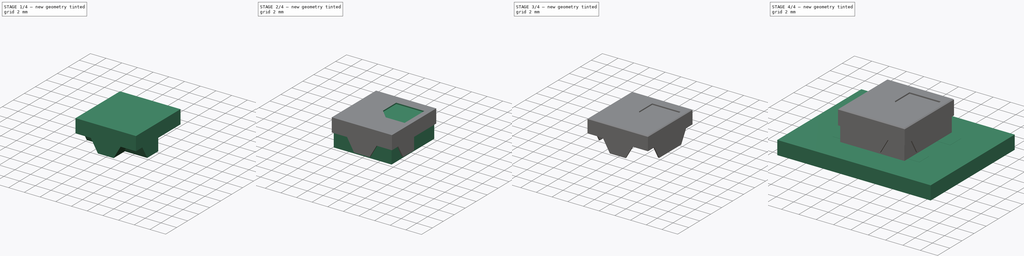
[diagram: build sequence overview — one tinted view per stage of 4, left to right]
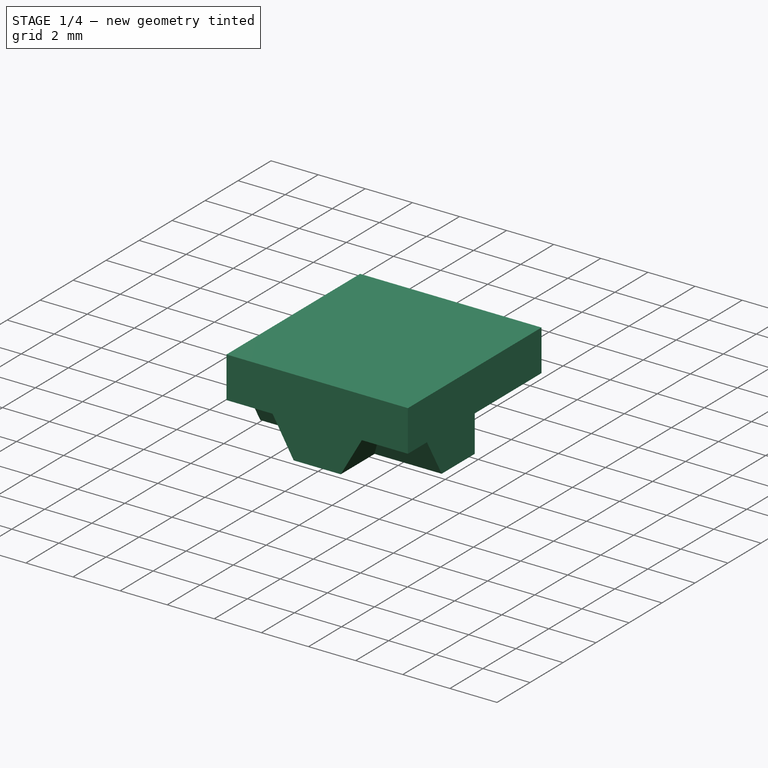
[diagram: stage 1 of 4 — iso view after this stage's code; geometry added in this stage tinted green]
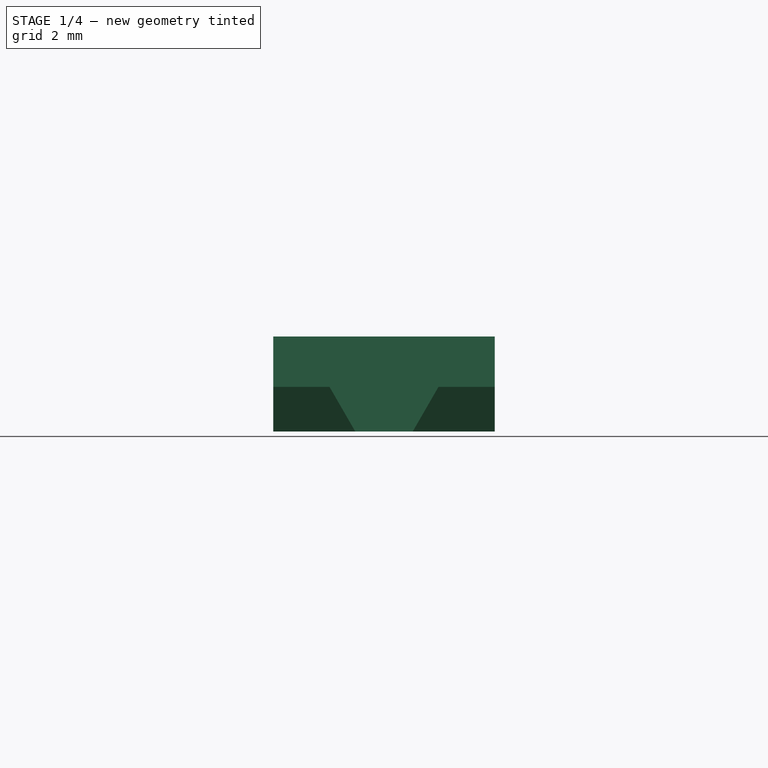
[diagram: stage 1 of 4 — front view after this stage's code; geometry added in this stage tinted green]
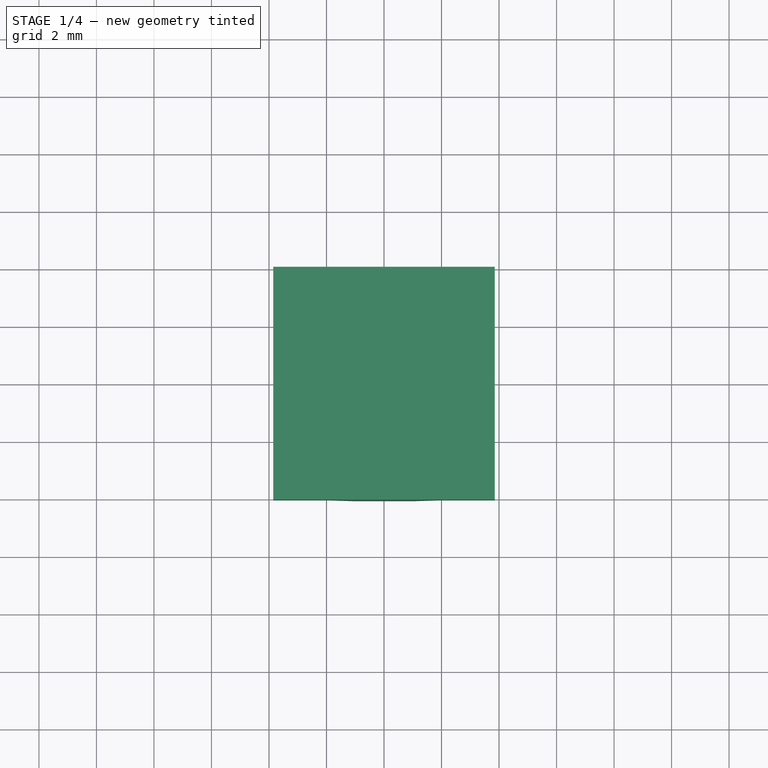
[diagram: stage 1 of 4 — top view after this stage's code; geometry added in this stage tinted green]
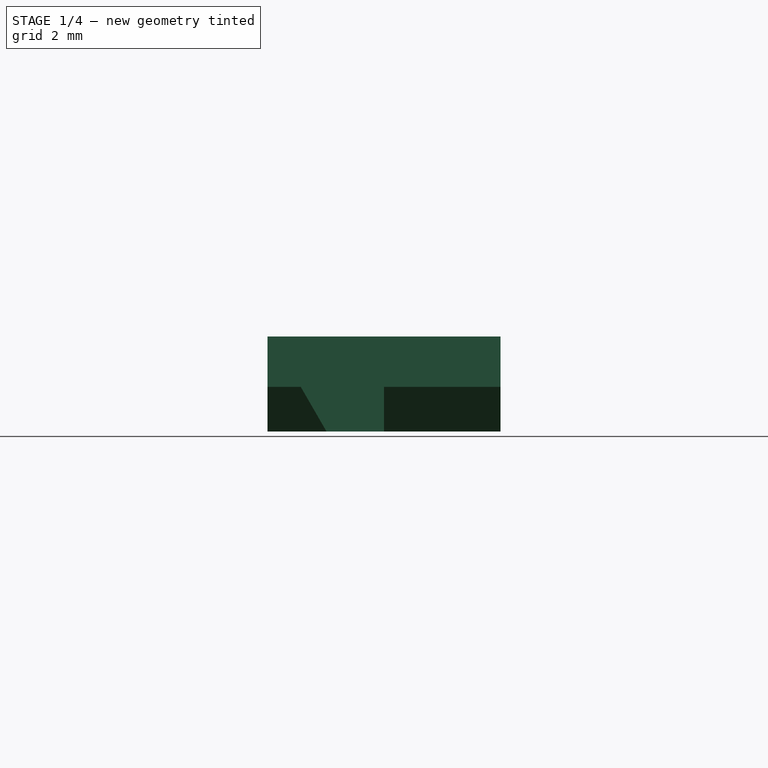
[diagram: stage 1 of 4 — right view after this stage's code; geometry added in this stage tinted green]
FCSTD DOCUMENT  (FreeCAD 0.19R24276 (Git))
Label: Vishay_TFMM5xx0
License: All rights reserved
LicenseURL: http://en.wikipedia.org/wiki/All_rights_reserved
objects: Sketcher::SketchObject×6, Part::FeaturePython×5, PartDesign::Pad×4, Part::Box×2, App::DocumentObjectGroup×1, PartDesign::Pocket×1, PartDesign::Body×1, Part::Cut×1, Part::Extrusion×1, Part::Chamfer×1, Part::Feature×1
note: 28 computed .brp shape members not serialized (recipe doc carries the construction recipe); baked Part::Feature solids carry a one-line shape summary decoded from their .brp

FEATURE [Sketcher::SketchObject] MirroredSketch
  FullyConstrained = false
  Placement = pos=(0,0,0) rot=(0.57735,0.57735,0.57735;2.0944rad)
  sketch-geometry (6):
    g0: LineSegment StartX=-2 StartY=0.2 StartZ=0 EndX=-2.89489 EndY=1.75 EndZ=0
    g1: LineSegment StartX=-2.89489 StartY=1.75 StartZ=0 EndX=-4.05 EndY=1.75 EndZ=0
    g2: LineSegment StartX=-4.05 StartY=1.75 StartZ=0 EndX=-4.05 EndY=3.5 EndZ=0
    g3: LineSegment StartX=-4.05 StartY=3.5 StartZ=0 EndX=0 EndY=3.5 EndZ=0
    g4: LineSegment StartX=-2 StartY=0.2 StartZ=0 EndX=0 EndY=0.2 EndZ=0
    g5: LineSegment StartX=0 StartY=3.5 StartZ=0 EndX=0 EndY=0.2 EndZ=0
  constraints (11):
    c: Coincident(g1,g0)
    c: Horizontal(g1)
    c: Coincident(g2,g1)
    c: Vertical(g2)
    c: Coincident(g3,g2)
    c: Horizontal(g3)
    c: Coincident(g4,g0)
    c: Horizontal(g4)
    c: Coincident(g5,g3)
    c: Coincident(g5,g4)
    c: Angle(g0,g4) = -2.0944
FEATURE [Sketcher::SketchObject] MirroredSketch001
  FullyConstrained = false
  Placement = pos=(0,0,0) rot=(1,0,0;1.5708rad)
  sketch-geometry (6):
    g0: LineSegment StartX=0 StartY=0.2 StartZ=0 EndX=7e-16 EndY=3.5 EndZ=0
    g1: LineSegment StartX=7e-16 StartY=3.5 StartZ=0 EndX=-3.85 EndY=3.5 EndZ=0
    g2: LineSegment StartX=-3.85 StartY=3.5 StartZ=0 EndX=-3.85 EndY=1.75 EndZ=0
    g3: LineSegment StartX=-3.85 StartY=1.75 StartZ=0 EndX=-1.89489 EndY=1.75 EndZ=0
    g4: LineSegment StartX=-1.89489 StartY=1.75 StartZ=0 EndX=-1 EndY=0.2 EndZ=0
    g5: LineSegment StartX=-1 StartY=0.2 StartZ=0 EndX=0 EndY=0.2 EndZ=0
  constraints (11):
    c: Coincident(g1,g0)
    c: Horizontal(g1)
    c: Coincident(g2,g1)
    c: Vertical(g2)
    c: Coincident(g3,g2)
    c: Horizontal(g3)
    c: Coincident(g4,g3)
    c: Coincident(g5,g4)
    c: Coincident(g5,g0)
    c: Horizontal(g5)
    c: Angle(g4,g5) = -2.0944
FEATURE [PartDesign::Pad] Pad
  Direction = (1,1,1)
  Length = 8.1
  Length2 = 100
  Midplane = true
  Placement = pos=(0,0,0) rot=(1,0,0;1.5708rad)
  Profile = -> MirroredSketch001
  Type = 0
FEATURE [PartDesign::Pad] Pad001
  BaseFeature = -> Pad
  Direction = (1,1,1)
  Length = 7.7
  Length2 = 100
  Midplane = true
  Placement = pos=(0,0,0) rot=(1,0,0;1.5708rad)
  Profile = -> MirroredSketch
  Type = 0
FEATURE [PartDesign::Pad] Pad002
  BaseFeature = -> Pad001
  Direction = (1,1,1)
  Length = 8.1
  Length2 = 100
  Midplane = true
  Placement = pos=(0,0,0) rot=(1,0,0;1.5708rad)
  Profile = -> Sketch001
  Type = 0
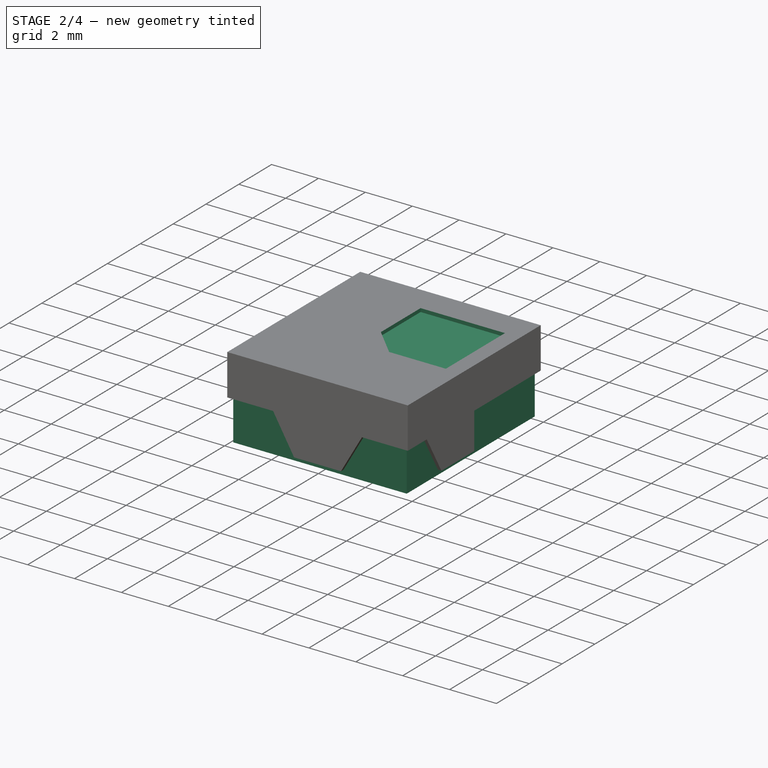
[diagram: stage 2 of 4 — iso view after this stage's code; geometry added in this stage tinted green]
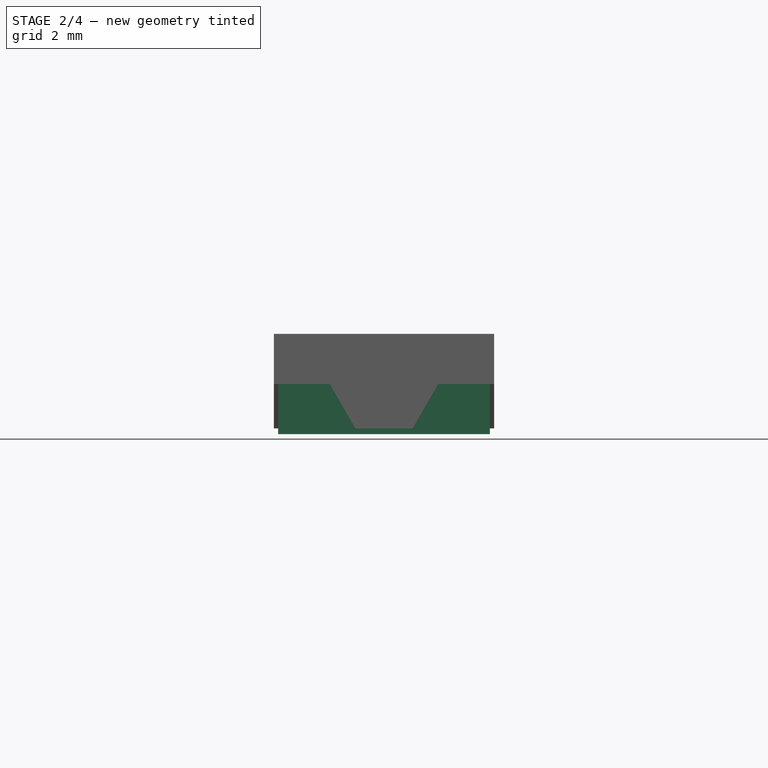
[diagram: stage 2 of 4 — front view after this stage's code; geometry added in this stage tinted green]
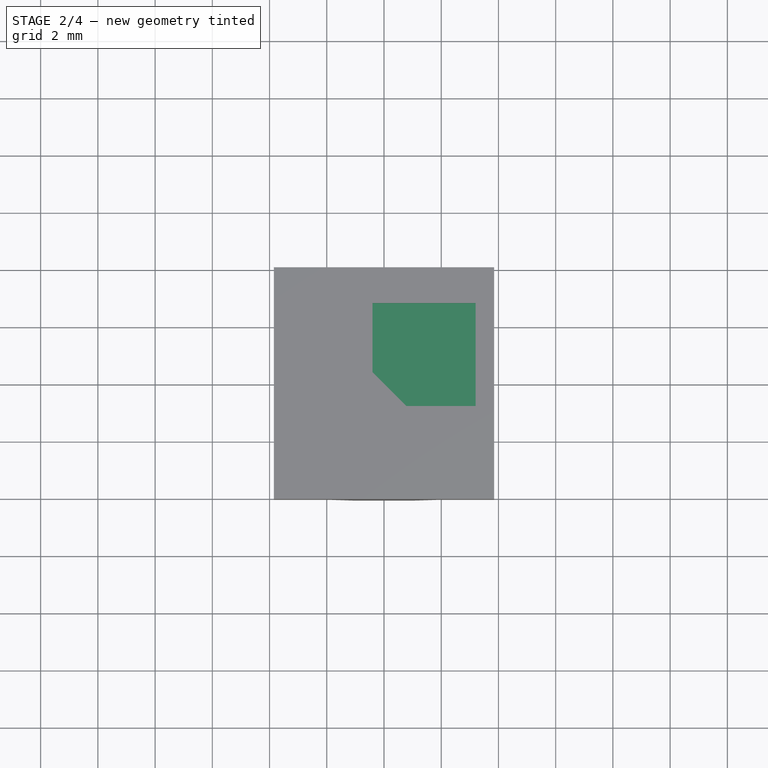
[diagram: stage 2 of 4 — top view after this stage's code; geometry added in this stage tinted green]
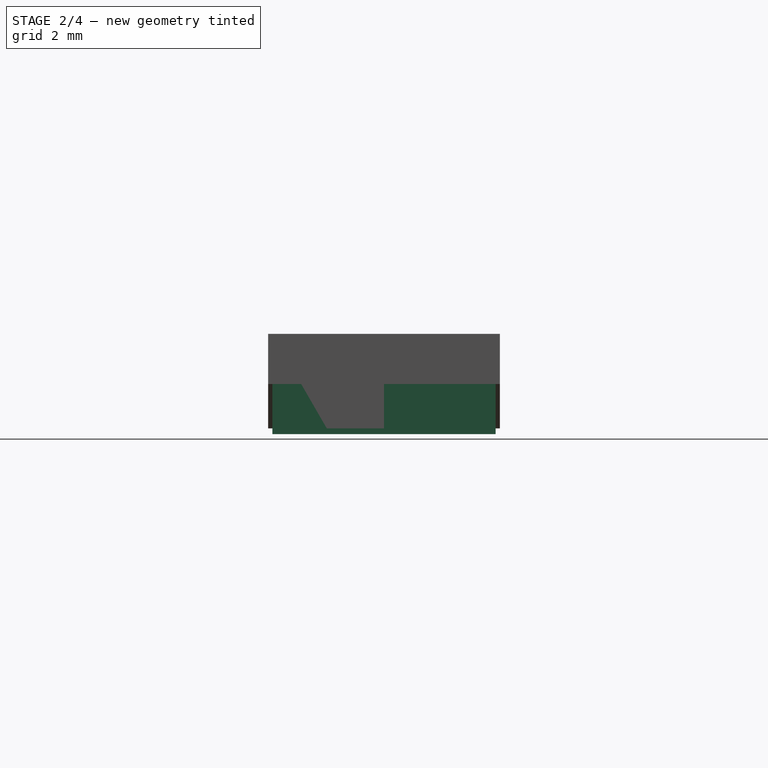
[diagram: stage 2 of 4 — right view after this stage's code; geometry added in this stage tinted green]
FEATURE [Sketcher::SketchObject] Sketch
  FullyConstrained = true
  MapMode = 5
  Placement = pos=(0,0,0) rot=(0.57735,0.57735,0.57735;2.0944rad)
  Support = -> [YZ_Plane]
  sketch-geometry (6):
    g0: LineSegment StartX=2 StartY=0.2 StartZ=0 EndX=2.89489 EndY=1.75 EndZ=0
    g1: LineSegment StartX=2.89489 StartY=1.75 StartZ=0 EndX=4.05 EndY=1.75 EndZ=0
    g2: LineSegment StartX=4.05 StartY=1.75 StartZ=0 EndX=4.05 EndY=3.5 EndZ=0
    g3: LineSegment StartX=4.05 StartY=3.5 StartZ=0 EndX=0 EndY=3.5 EndZ=0
    g4: LineSegment StartX=2 StartY=0.2 StartZ=0 EndX=0 EndY=0.2 EndZ=0
    g5: LineSegment StartX=0 StartY=3.5 StartZ=0 EndX=0 EndY=0.2 EndZ=0
  constraints (18):
    c: Coincident(g1,g0)
    c: Horizontal(g1)
    c: Coincident(g2,g1)
    c: Vertical(g2)
    c: Coincident(g3,g2)
    c: PointOnObject(g3,g-2)
    c: Horizontal(g3)
    c: Coincident(g4,g0)
    c: PointOnObject(g4,g-2)
    c: Horizontal(g4)
    c: Coincident(g5,g3)
    c: Coincident(g5,g4)
    c: DistanceY(g-1,g4) = 0.2
    c: DistanceY(g-1,g3) = 3.5
    c: Angle(g0,g4) = 2.0944
    c: DistanceX(g3,g3) = 4.05
    c: DistanceY(g-1,g1) = 1.75
    c: DistanceX(g4,g4) = 2
FEATURE [Sketcher::SketchObject] Sketch001
  ExternalGeometry = -> [Sketch]
  FullyConstrained = true
  MapMode = 5
  Placement = pos=(0,0,0) rot=(1,0,0;1.5708rad)
  Support = -> [XZ_Plane]
  sketch-geometry (6):
    g0: LineSegment StartX=0 StartY=0.2 StartZ=0 EndX=-7e-16 EndY=3.5 EndZ=0
    g1: LineSegment StartX=-7e-16 StartY=3.5 StartZ=0 EndX=3.85 EndY=3.5 EndZ=0
    g2: LineSegment StartX=3.85 StartY=3.5 StartZ=0 EndX=3.85 EndY=1.75 EndZ=0
    g3: LineSegment StartX=3.85 StartY=1.75 StartZ=0 EndX=1.89489 EndY=1.75 EndZ=0
    g4: LineSegment StartX=1.89489 StartY=1.75 StartZ=0 EndX=1 EndY=0.2 EndZ=0
    g5: LineSegment StartX=1 StartY=0.2 StartZ=0 EndX=0 EndY=0.2 EndZ=0
  constraints (16):
    c: Coincident(g0,g-3)
    c: Coincident(g0,g-3)
    c: Coincident(g1,g0)
    c: Horizontal(g1)
    c: Coincident(g2,g1)
    c: Vertical(g2)
    c: Coincident(g3,g2)
    c: Horizontal(g3)
    c: Coincident(g4,g3)
    c: Coincident(g5,g4)
    c: Coincident(g5,g0)
    c: Horizontal(g5)
    c: Angle(g4,g5) = 2.0944
    c: DistanceX(g1,g1) = 3.85
    c: DistanceX(g5,g5) = 1
    c: DistanceY(g0,g2) = 1.55
FEATURE [Part::Box] Box  label="Cube"
  AttacherType = Attacher::AttachEngine3D
  Height = 3.35
  Length = 7.4
  Placement = pos=(-3.7,-3.9,0) rot=(0,0,1;0rad)
  Width = 7.8
FEATURE [PartDesign::Pad] Pad003
  BaseFeature = -> Pad002
  Direction = (1,1,1)
  Length = 7.7
  Length2 = 100
  Midplane = true
  Placement = pos=(0,0,0) rot=(1,0,0;1.5708rad)
  Profile = -> Sketch
  Type = 0
FEATURE [Sketcher::SketchObject] Sketch002
  FullyConstrained = true
  MapMode = 45
  Placement = pos=(7e-16,5.9e-15,3.5) rot=(0,0,1;0rad)
  Support = -> [Pad003]
  sketch-geometry (5):
    g0: LineSegment StartX=-0.4 StartY=2.8 StartZ=0 EndX=3.2 EndY=2.8 EndZ=0
    g1: LineSegment StartX=3.2 StartY=2.8 StartZ=0 EndX=3.2 EndY=-0.8 EndZ=0
    g2: LineSegment StartX=3.2 StartY=-0.8 StartZ=0 EndX=0.78 EndY=-0.8 EndZ=0
    g3: LineSegment StartX=0.78 StartY=-0.8 StartZ=0 EndX=-0.4 EndY=0.38 EndZ=0
    g4: LineSegment StartX=-0.4 StartY=0.38 StartZ=0 EndX=-0.4 EndY=2.8 EndZ=0
  constraints (15):
    c: Horizontal(g0)
    c: Coincident(g1,g0)
    c: Vertical(g1)
    c: Coincident(g2,g1)
    c: Horizontal(g2)
    c: Coincident(g3,g2)
    c: Coincident(g4,g0)
    c: Vertical(g4)
    c: Angle(g2,g3) = 2.35619
    c: Coincident(g3,g4)
    c: DistanceY(g1,g-1) = 0.8
    c: DistanceX(g3,g-1) = 0.4
    c: DistanceY(g1,g1) = 3.6
    c: DistanceX(g0,g0) = 3.6
    c: DistanceY(g4,g4) = 2.42
FEATURE [PartDesign::Pocket] Pocket
  BaseFeature = -> Pad003
  Length = 0.15
  Length2 = 100
  Placement = pos=(0,0,0) rot=(1,0,0;1.5708rad)
  Profile = -> Sketch002
  Type = 0
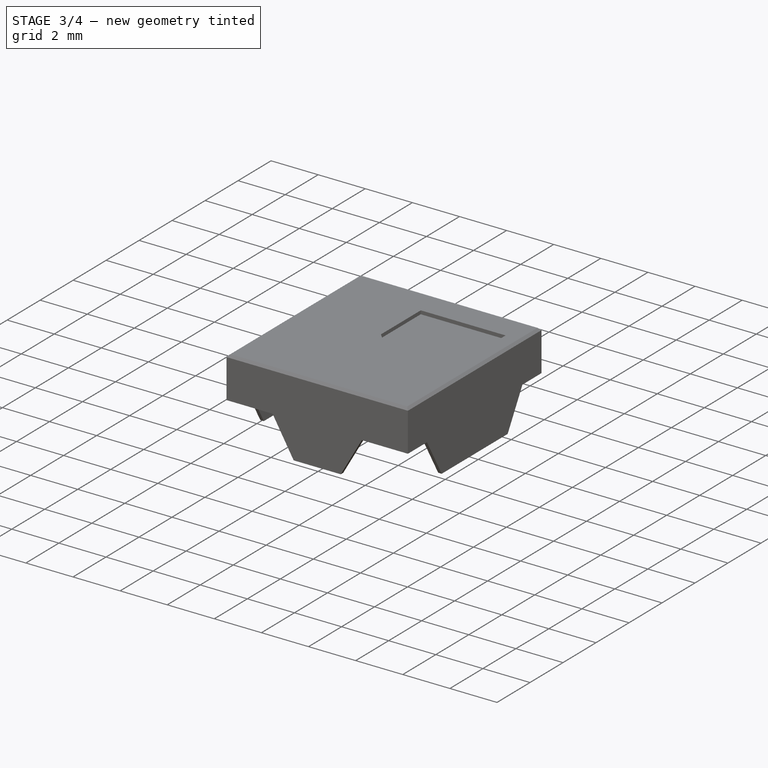
[diagram: stage 3 of 4 — iso view after this stage's code; geometry added in this stage tinted green]
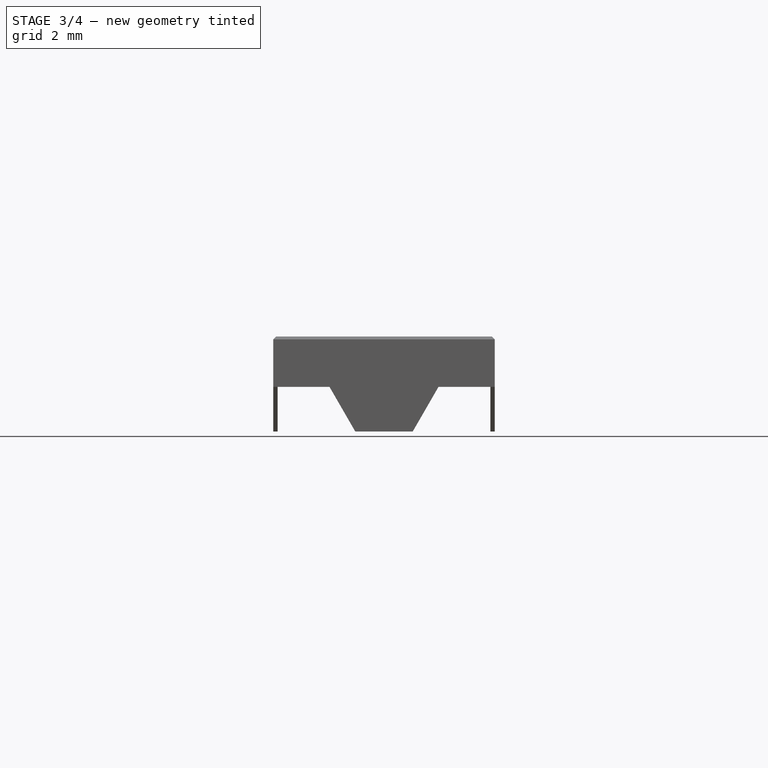
[diagram: stage 3 of 4 — front view after this stage's code; geometry added in this stage tinted green]
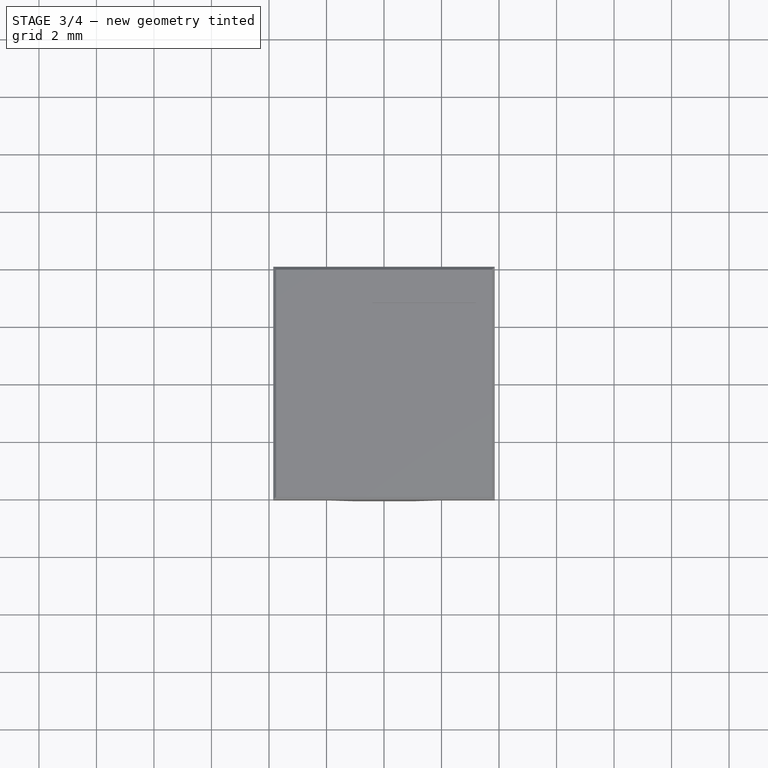
[diagram: stage 3 of 4 — top view after this stage's code; geometry added in this stage tinted green]
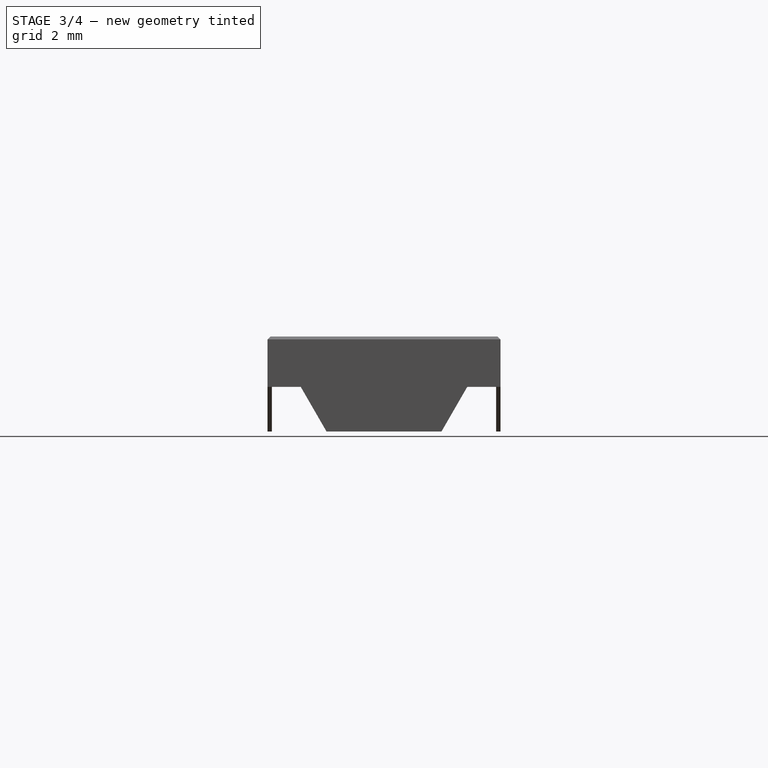
[diagram: stage 3 of 4 — right view after this stage's code; geometry added in this stage tinted green]
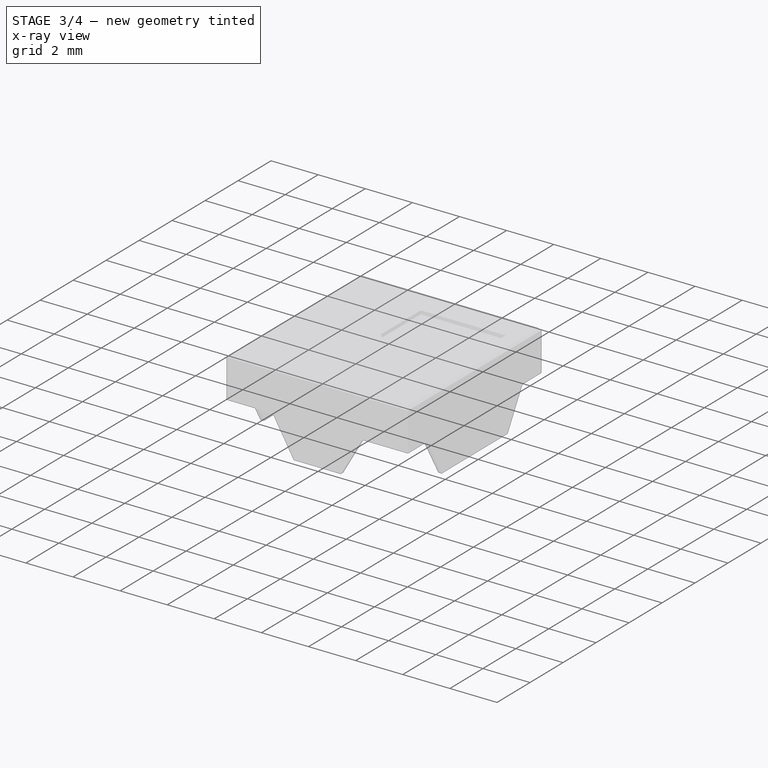
[diagram: stage 3 of 4 — x-ray composite at the iso view; earlier geometry ghosted, this stage's added geometry solid]
FEATURE [Sketcher::SketchObject] Sketch003
  FullyConstrained = true
  Placement = pos=(7e-16,5.9e-15,3.35) rot=(0,0,1;0rad)
  sketch-geometry (5):
    g0: LineSegment StartX=-0.4 StartY=2.8 StartZ=0 EndX=3.2 EndY=2.8 EndZ=0
    g1: LineSegment StartX=3.2 StartY=2.8 StartZ=0 EndX=3.2 EndY=-0.8 EndZ=0
    g2: LineSegment StartX=3.2 StartY=-0.8 StartZ=0 EndX=0.78 EndY=-0.8 EndZ=0
    g3: LineSegment StartX=0.78 StartY=-0.8 StartZ=0 EndX=-0.4 EndY=0.38 EndZ=0
    g4: LineSegment StartX=-0.4 StartY=0.38 StartZ=0 EndX=-0.4 EndY=2.8 EndZ=0
  constraints (15):
    c: Horizontal(g0)
    c: Coincident(g1,g0)
    c: Vertical(g1)
    c: Coincident(g2,g1)
    c: Horizontal(g2)
    c: Coincident(g3,g2)
    c: Coincident(g4,g0)
    c: Vertical(g4)
    c: Angle(g2,g3) = 2.35619
    c: Coincident(g3,g4)
    c: DistanceY(g1,g-1) = 0.8
    c: DistanceX(g3,g-1) = 0.4
    c: DistanceY(g1,g1) = 3.6
    c: DistanceX(g0,g0) = 3.6
    c: DistanceY(g4,g4) = 2.42
FEATURE [PartDesign::Body] Body
  Group = -> [Sketch003,Sketch,Sketch001,MirroredSketch,MirroredSketch001,Pad,Pad001,Pad002,Pad003,Sketch002,Pocket]
  Origin = -> Origin
  Tip = -> Pocket
FEATURE [Part::Cut] Cut
  Base = -> Pocket
  Tool = -> Box
FEATURE [Part::Extrusion] Extrude
  Base = -> Sketch003
  Dir = (0,0,-1)
  DirMode = 0
  FaceMakerClass = Part::FaceMakerBullseye
  LengthFwd = 0.05
  LengthRev = 0
  Solid = true
  Symmetric = false
FEATURE [Part::Chamfer] Chamfer
  Base = -> Cut
  Edges = 8 edges r=0.1: [Edge12,Edge30,Edge38,Edge70,Edge71,Edge80,Edge114,Edge115]
FEATURE [Part::Feature] Shape001  label="Vishay_TFMM5xx0"
  shape: bbox 8.1 x 7.7 x 3.5 mm, 70 faces (baked)
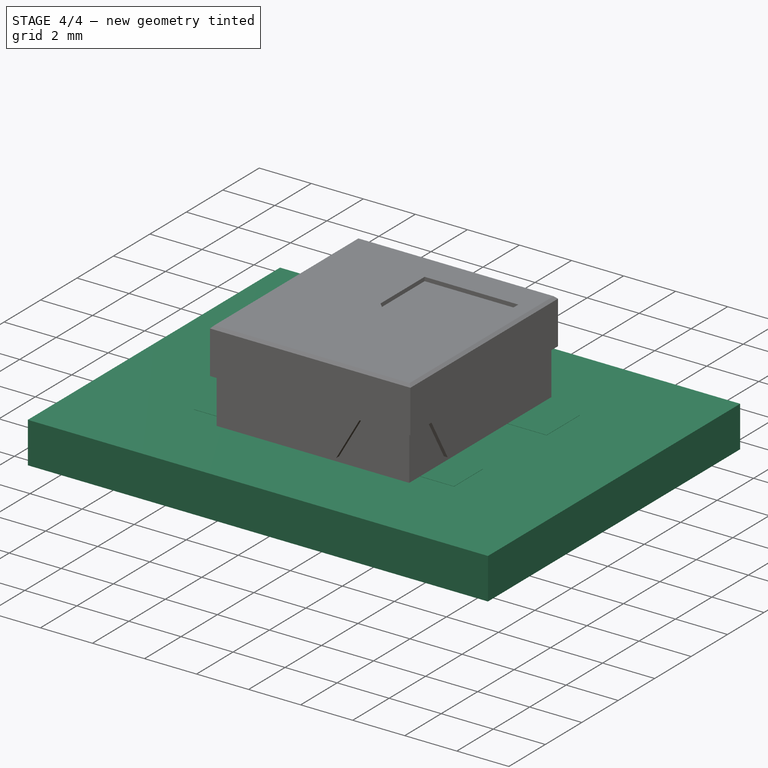
[diagram: stage 4 of 4 — iso view after this stage's code; geometry added in this stage tinted green]
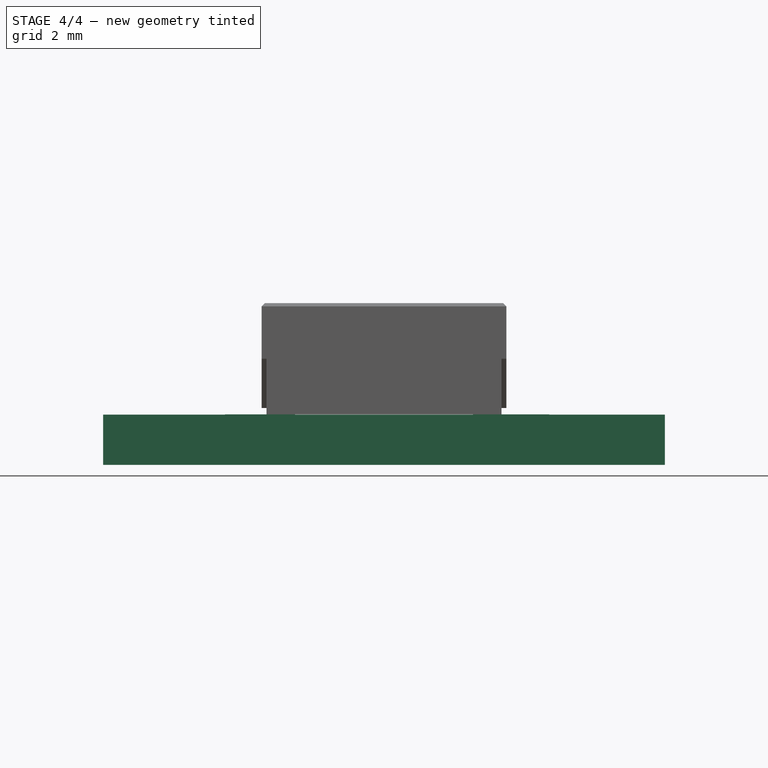
[diagram: stage 4 of 4 — front view after this stage's code; geometry added in this stage tinted green]
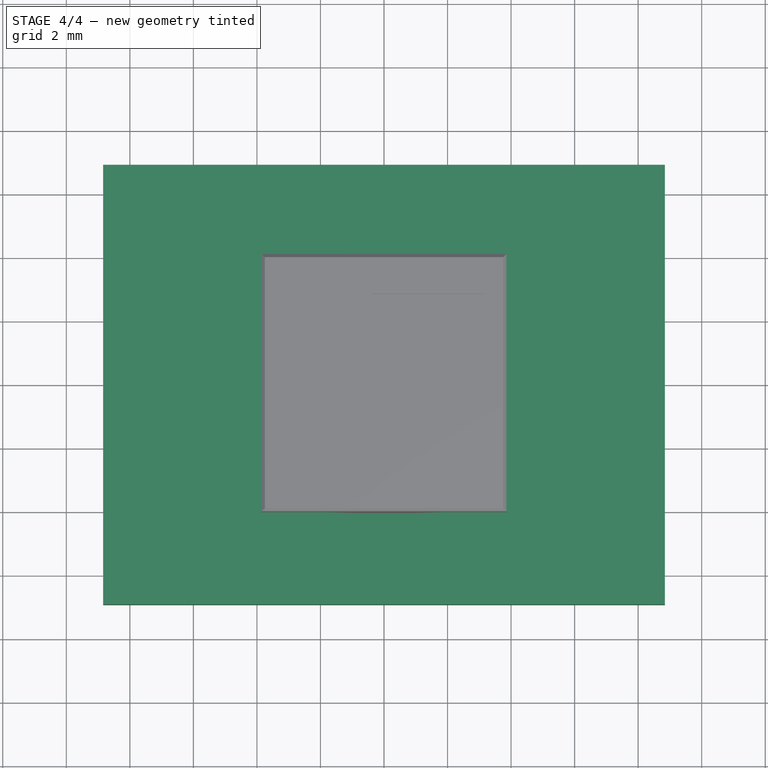
[diagram: stage 4 of 4 — top view after this stage's code; geometry added in this stage tinted green]
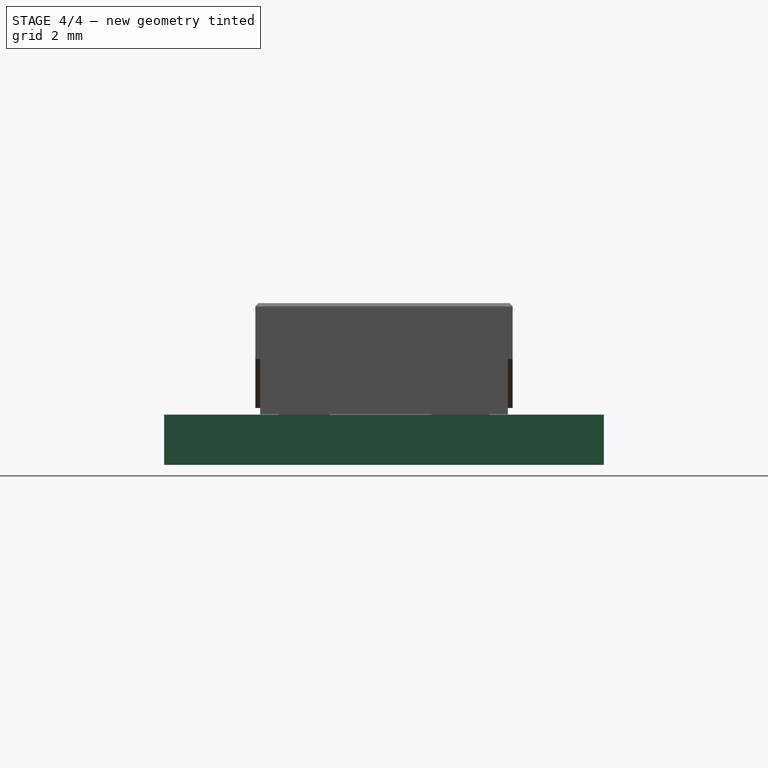
[diagram: stage 4 of 4 — right view after this stage's code; geometry added in this stage tinted green]
FEATURE [Part::FeaturePython] FCrtYd_lines  label="FCrtYd"  # a2plus imported part (geometry in sourceFile) (typed FeaturePython)
  fixedPosition = true
FEATURE [Part::FeaturePython] FFab_lines  label="FFab"  # a2plus imported part (geometry in sourceFile) (typed FeaturePython)
  fixedPosition = true
FEATURE [Part::FeaturePython] Filk_lines  label="FrontSilk"  # a2plus imported part (geometry in sourceFile) (typed FeaturePython)
  fixedPosition = true
FEATURE [Part::FeaturePython] TopPads  # a2plus imported part (geometry in sourceFile) (typed FeaturePython)
  fixedPosition = true
FEATURE [Part::FeaturePython] newPCB  label="Pcb"  # a2plus imported part (geometry in sourceFile) (typed FeaturePython)
  fixedPosition = true
FEATURE [App::DocumentObjectGroup] _module_fp
  Group = -> [FCrtYd_lines,FFab_lines,Filk_lines,TopPads,newPCB]
FEATURE [Part::Box] Box001  label="Cube001"
  AttacherType = Attacher::AttachEngine3D
  Height = 3.3
  Length = 7.4
  Placement = pos=(-3.7,-3.9,0) rot=(0,0,1;0rad)
  Width = 7.8
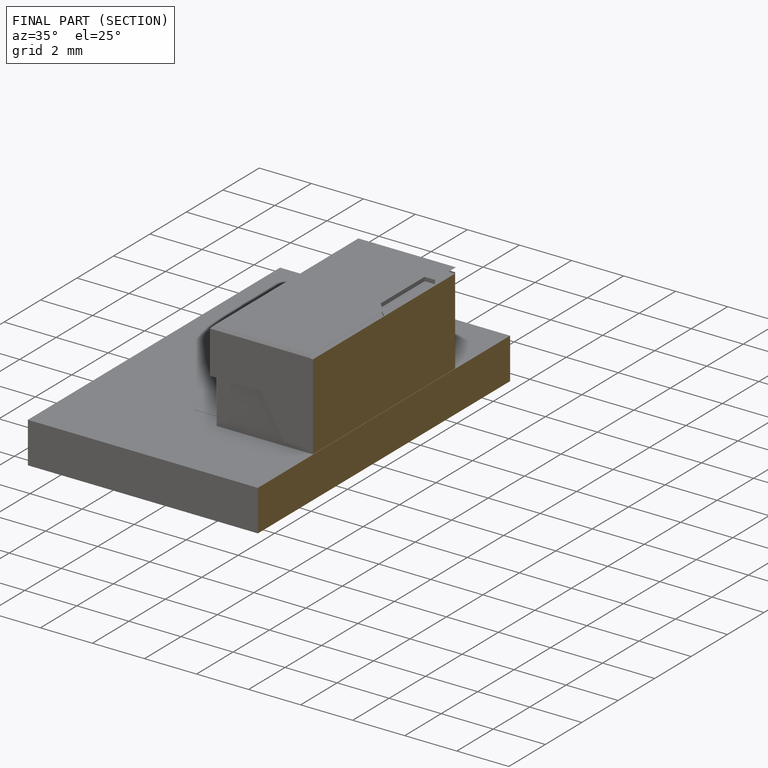
[diagram: finished part — half-section view (interior)]
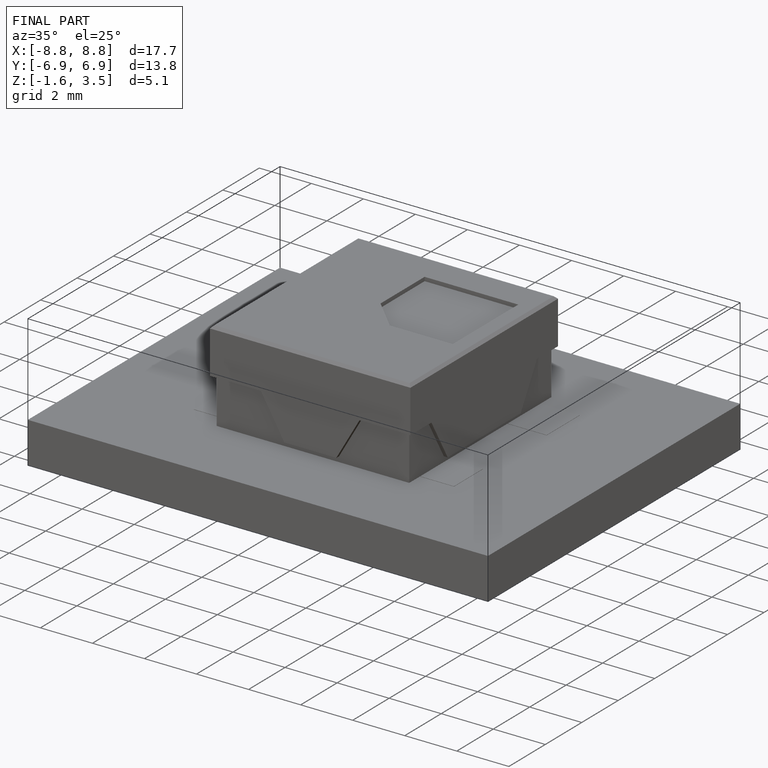
[diagram: finished part — iso view with bounding-box wireframe]
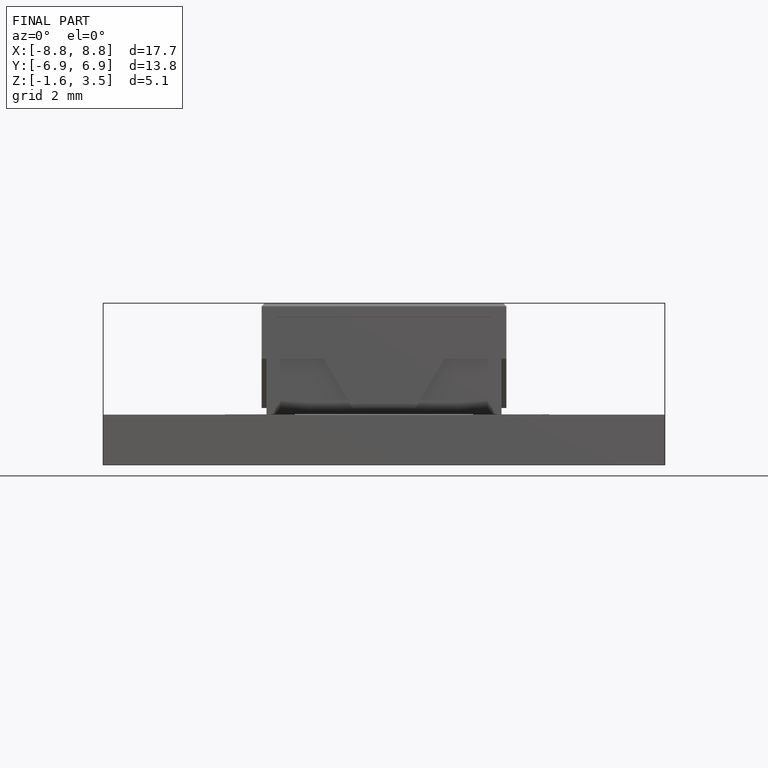
[diagram: finished part — front view with bounding-box wireframe]
